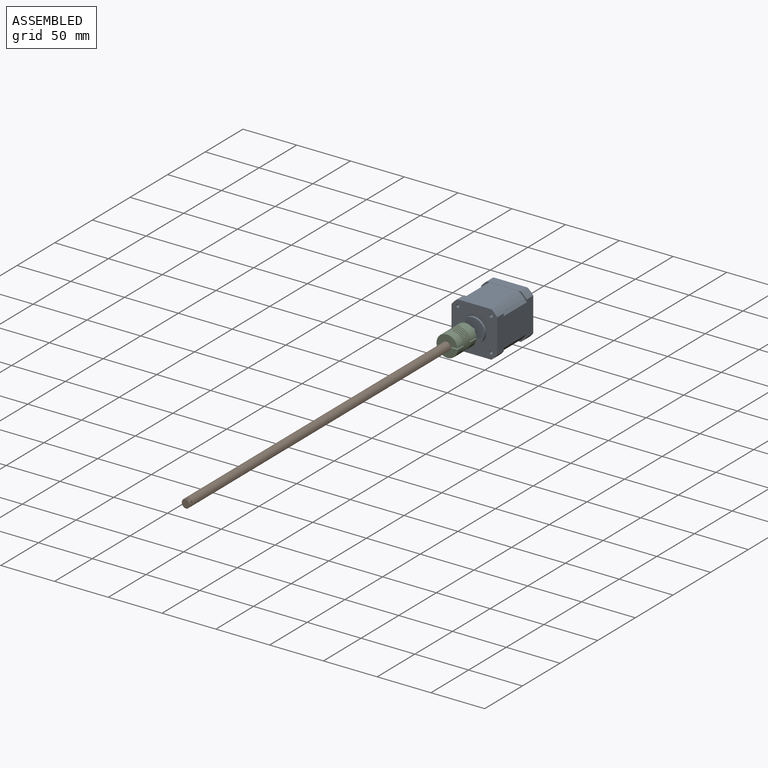
[diagram: assembled view]
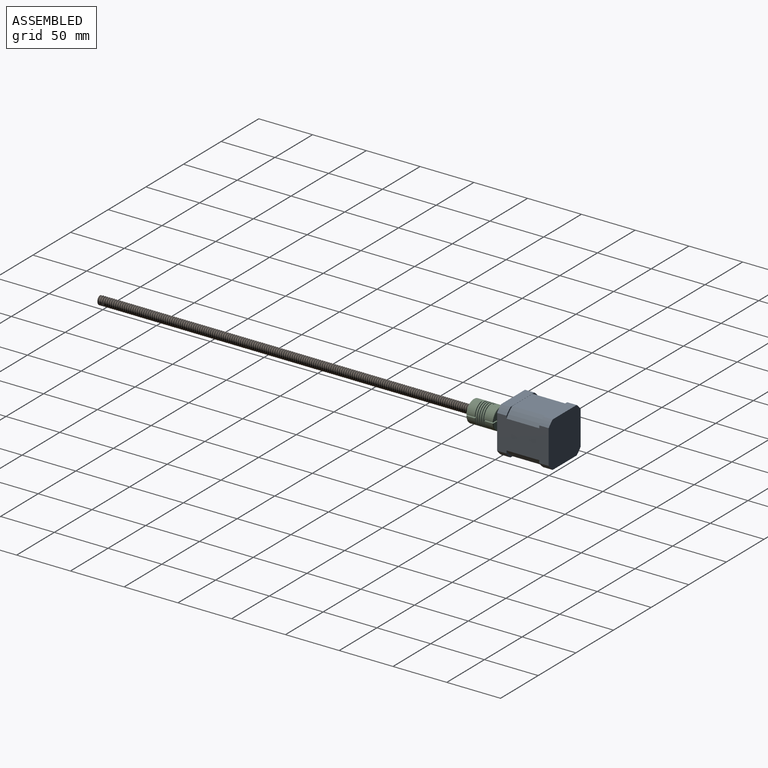
[diagram: assembled view, second angle]
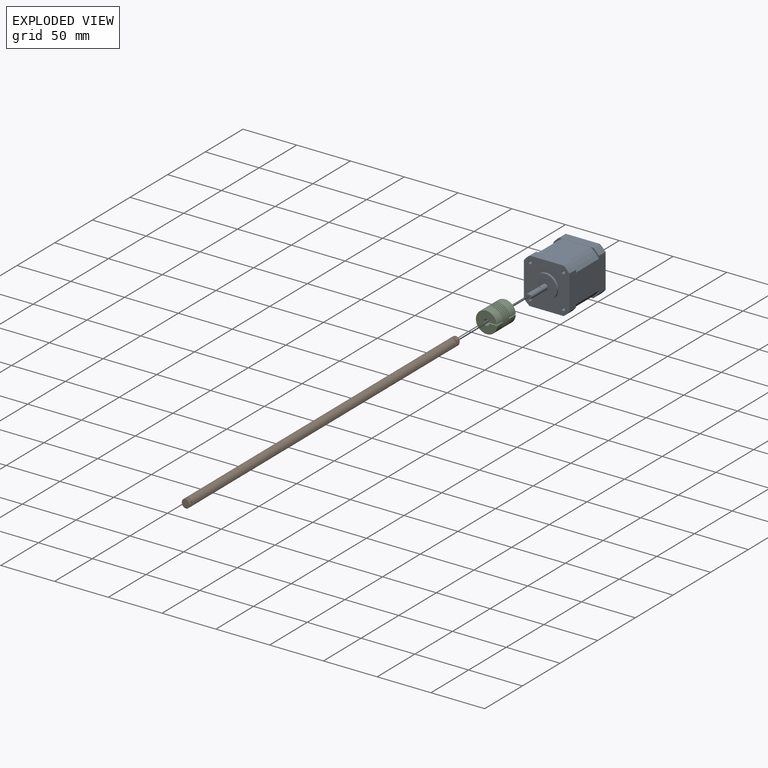
[diagram: exploded view]
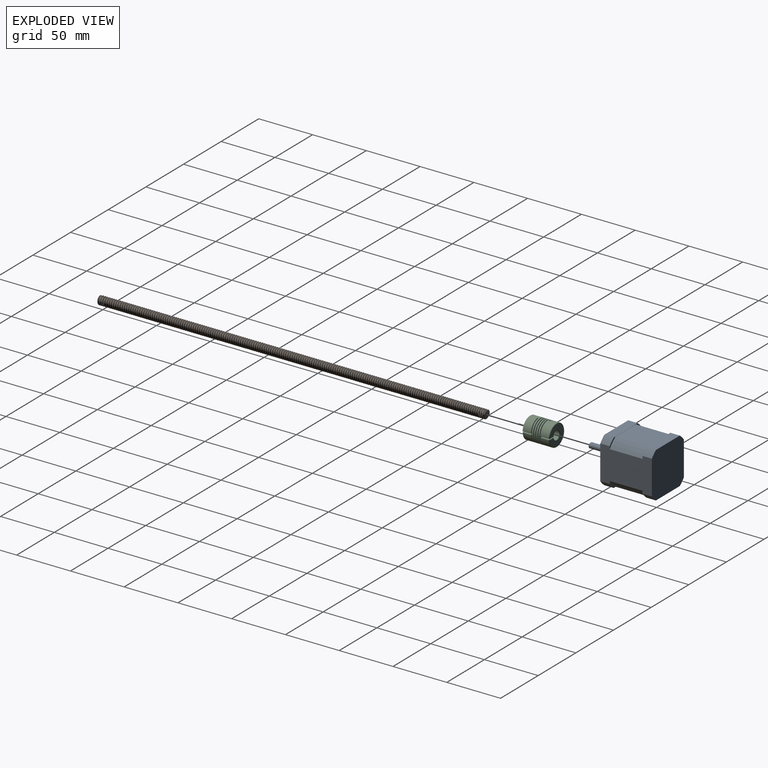
[diagram: exploded view, second angle]
ASSEMBLY  parts=3 mates=2
PART A: 50 faces, bbox 42.4x72x42.4 mm
  f0: cylinder r=2.5mm len=22mm, axis (0,1,0), area 297.3mm2, adj f1,f2,f29,f30
  f1: plane 5x4.5mm, normal (0,-1,0), area 18.6mm2, adj f0,f29
  f2: plane 22x22mm, normal (0,-1,0), area 360.5mm2, adj f0,f3
  f3: cylinder r=11mm len=22mm, axis (0,1,0), area 138.2mm2, adj f2,f8
  f4: plane 31.78x8.75mm, normal (1,0,0), area 278mm2, adj f8,f9,f10,f32
  f5: plane 31.78x8.75mm, normal (0,0,-1), area 278mm2, adj f8,f9,f11,f32
  f6: plane 31.78x8.75mm, normal (-1,0,0), area 278mm2, adj f8,f11,f12,f32
  f7: plane 31.78x8.75mm, normal (0,0,1), area 278mm2, adj f8,f10,f12,f32
  f8: plane 42.42x42.42mm, normal (0,-1,0), area 1339.6mm2, adj f3,f4,f5,f6,f7,f9,f10,f11
  f9: cylinder r=26.5mm len=8.75mm, axis (0,1,0), area 66.1mm2, adj f4,f5,f8,f32
  f10: cylinder r=26.5mm len=8.75mm, axis (0,1,0), area 66.1mm2, adj f4,f7,f8,f32
  f11: cylinder r=26.5mm len=8.75mm, axis (0,1,0), area 66.1mm2, adj f5,f6,f8,f32
  f12: cylinder r=26.5mm len=8.75mm, axis (0,1,0), area 66.1mm2, adj f6,f7,f8,f32
  f13: cone r=1.25mm half-angle=59deg, axis (0,-1,0), area 5.7mm2, adj f14
  f14: cylinder r=1.25mm len=2.5mm, axis (0,-1,0), area 11.8mm2, adj f13,f15
  f15: plane 3x3mm, normal (0,-1,0), area 2.2mm2, adj f14,f16
  f16: cylinder r=1.5mm len=6mm, axis (0,-1,0), area 56.5mm2, adj f8,f15
  f17: cone r=1.25mm half-angle=59deg, axis (0,-1,0), area 5.7mm2, adj f18
  f18: cylinder r=1.25mm len=2.5mm, axis (0,-1,0), area 11.8mm2, adj f17,f19
  f19: plane 3x3mm, normal (0,-1,0), area 2.2mm2, adj f18,f20
  f20: cylinder r=1.5mm len=6mm, axis (0,-1,0), area 56.5mm2, adj f8,f19
  f21: cone r=1.25mm half-angle=59deg, axis (0,-1,0), area 5.7mm2, adj f22
  f22: cylinder r=1.25mm len=2.5mm, axis (0,-1,0), area 11.8mm2, adj f21,f23
  f23: plane 3x3mm, normal (0,-1,0), area 2.2mm2, adj f22,f24
  f24: cylinder r=1.5mm len=6mm, axis (0,-1,0), area 56.5mm2, adj f8,f23
  f25: cone r=1.25mm half-angle=59deg, axis (0,-1,0), area 5.7mm2, adj f26
  f26: cylinder r=1.25mm len=2.5mm, axis (0,-1,0), area 11.8mm2, adj f25,f27
  f27: plane 3x3mm, normal (0,-1,0), area 2.2mm2, adj f26,f28
  f28: cylinder r=1.5mm len=6mm, axis (0,-1,0), area 56.5mm2, adj f8,f27
  f29: plane 15x3mm, normal (0,0,1), area 45mm2, adj f0,f1,f30
  f30: plane 3x0.5mm, normal (0,-1,0), area 1mm2, adj f0,f29
  f31: plane 42.42x42.42mm, normal (0,-1,0), area 67.2mm2, adj f33,f34,f35,f36,f37,f38,f39,f40
  f32: plane 42.42x42.42mm, normal (0,1,0), area 67.2mm2, adj f4,f5,f6,f7,f9,f10,f11,f12
  f33: cylinder r=25mm len=30.5mm, axis (0,-1,0), area 335.5mm2, adj f31,f32,f34,f40
  f34: plane 30.5x26.79mm, normal (0,0,1), area 817.1mm2, adj f31,f32,f33,f35
  f35: cylinder r=25mm len=30.5mm, axis (0,-1,0), area 335.5mm2, adj f31,f32,f34,f36
  f36: plane 30.5x26.79mm, normal (1,0,0), area 817.1mm2, adj f31,f32,f35,f37
  f37: cylinder r=25mm len=30.5mm, axis (0,-1,0), area 335.5mm2, adj f31,f32,f36,f38
  f38: plane 30.5x26.79mm, normal (0,0,-1), area 817.1mm2, adj f31,f32,f37,f39
  f39: cylinder r=25mm len=30.5mm, axis (0,-1,0), area 335.5mm2, adj f31,f32,f38,f40
  f40: plane 30.5x26.79mm, normal (-1,0,0), area 817.1mm2, adj f31,f32,f33,f39
  f41: plane 42.42x42.42mm, normal (0,1,0), area 1748.1mm2, adj f42,f43,f44,f45,f46,f47,f48,f49
  f42: cylinder r=26.5mm len=8.75mm, axis (0,1,0), area 66.1mm2, adj f31,f41,f48,f49
  f43: cylinder r=26.5mm len=8.75mm, axis (0,1,0), area 66.1mm2, adj f31,f41,f47,f48
  f44: cylinder r=26.5mm len=8.75mm, axis (0,1,0), area 66.1mm2, adj f31,f41,f46,f47
  f45: cylinder r=26.5mm len=8.75mm, axis (0,1,0), area 66.1mm2, adj f31,f41,f46,f49
  f46: plane 31.78x8.75mm, normal (0,0,1), area 278mm2, adj f31,f41,f44,f45
  f47: plane 31.78x8.75mm, normal (-1,0,0), area 278mm2, adj f31,f41,f43,f44
  f48: plane 31.78x8.75mm, normal (0,0,-1), area 278mm2, adj f31,f41,f42,f43
  f49: plane 31.78x8.75mm, normal (1,0,0), area 278mm2, adj f31,f41,f42,f45
PART B: 7 faces, bbox 9.3x361.7x8.1 mm
  f0: cylinder r=4mm len=359.5mm, axis (0,1,0), area -14461mm2, adj f2,f4,f5,f6
  f1: plane 6.05x5.89mm, normal (0,-1,0), area 27.5mm2, adj f3,f4,f5,f6
  f2: plane 6.89x6.85mm, normal (0,1,0), area 36.3mm2, adj f0,f3,f4,f5
  f3: bspline ~361.5x6.74mm, area 1801.6mm2, adj f1,f2,f4,f5
  f4: bspline ~361.63x9.24mm, area 4917.4mm2, adj f0,f1,f2,f3,f6
  f5: bspline ~360.96x9.24mm, area 4911.7mm2, adj f0,f1,f2,f3,f6
  f6: cone r=4mm half-angle=63.4deg, axis (0,1,0), area 9.8mm2, adj f0,f1,f4,f5
PART C: 32 faces, bbox 23.9x26.3x22.8 mm
  f0: cone r=4mm half-angle=45deg, axis (0,1,0), area 10.7mm2, adj f1,f2,f3,f4
  f1: plane 9.63x7.31mm, normal (0,0,-1), area 42.2mm2, adj f0,f2,f4,f5,f6,f7,f8
  f2: plane 19.4x19.39mm, normal (0,1,0), area 232.6mm2, adj f0,f1,f3,f5
  f3: plane 9.58x7.31mm, normal (0,0,1), area 41.9mm2, adj f0,f2,f4,f5,f6,f9,f10
  f4: cylinder r=4mm len=12.2mm, axis (0,1,0), area 244.1mm2, adj f0,f1,f3,f7,f8,f9,f10,f11
  f5: cone r=10mm half-angle=45deg, axis (0,-1,0), area 25.9mm2, adj f1,f2,f3,f6
  f6: cylinder r=10mm len=24.4mm, axis (0,-1,0), area 1299.2mm2, adj f1,f3,f5,f7,f10,f11,f12,f14
  f7: bspline ~22.61x21.5mm, area 1185.7mm2, adj f1,f4,f6,f13,f18,f19
  f8: cylinder r=1.7mm len=5.75mm, axis (0,0,1), area 57.2mm2, adj f1,f4,f20
  f9: cylinder r=1.7mm len=8.99mm, axis (0,0,1), area 82.2mm2, adj f3,f4,f21
  f10: bspline ~22.29x21.2mm, area 195mm2, adj f3,f4,f6,f11
  f11: plane 6x0.7mm, normal (-1,0,0), area 4.2mm2, adj f4,f6,f10,f12
  f12: bspline ~22.61x21.5mm, area 1319.3mm2, adj f4,f6,f11,f13,f14,f19
  f13: plane 8x7.24mm, normal (0,1,0), area 19.9mm2, adj f4,f7,f12,f19
  f14: plane 8.92x8.39mm, normal (0,0,1), area 51.3mm2, adj f6,f12,f15,f19,f22,f23,f24
  f15: cone r=9.7mm half-angle=45deg, axis (0,1,0), area 25.9mm2, adj f6,f14,f16,f23
  f16: plane 8.85x8.39mm, normal (0,0,-1), area 50.9mm2, adj f6,f15,f17,f19,f22,f23,f25
  f17: bspline ~12.03x10.95mm, area 69.1mm2, adj f6,f16,f18,f19
  f18: plane 7.5x0.7mm, normal (1,0,0), area 5.2mm2, adj f6,f7,f17,f19
  f19: cylinder r=2.5mm len=12.2mm, axis (0,-1,0), area 159.1mm2, adj f7,f12,f13,f14,f16,f17,f18,f22
  f20: plane 6x5.85mm, normal (0,0,1), area 19mm2, adj f8,f26,f27
  f21: cylinder r=10mm len=3.4mm, axis (0,-1,0), area 10.5mm2, adj f9
  f22: cone r=2.5mm half-angle=45deg, axis (0,-1,0), area 6.7mm2, adj f14,f16,f19,f23
  f23: plane 19.4x19.39mm, normal (0,-1,0), area 264.7mm2, adj f14,f15,f16,f22
  f24: cylinder r=1.7mm len=8.21mm, axis (0,0,1), area 83.7mm2, adj f14,f28
  f25: cylinder r=1.7mm len=5.75mm, axis (0,0,1), area 61.4mm2, adj f16,f29
  f26: cylinder r=10mm len=6mm, axis (0,-1,0), area 30.3mm2, adj f20,f27
  f27: cylinder r=3mm len=6mm, axis (0,0,1), area 32.4mm2, adj f20,f26
  f28: cylinder r=10mm len=3.4mm, axis (0,-1,0), area 10.5mm2, adj f24
  f29: plane 6x5.85mm, normal (0,0,1), area 19mm2, adj f25,f30,f31
  f30: cylinder r=10mm len=6mm, axis (0,-1,0), area 30.3mm2, adj f29,f31
  f31: cylinder r=3mm len=6mm, axis (0,0,1), area 32.4mm2, adj f29,f30
PLACE A t=(-64.31,-43.44,12.18)mm
PLACE B rot(axis=(0,0,-1),180deg) t=(-64.31,-427.44,12.18)mm
PLACE C rot(axis=(0,1,0),0deg) t=(-64.17,-79.94,12.18)mm
MATE fastened C.f13 <-> B.f0  axis (0,1,0) through (-64.31,-67.44,12.18)mm
MATE revolute B.f0 <-> A.f0  axis (0,1,0) through (-64.31,-67.44,12.18)mm
